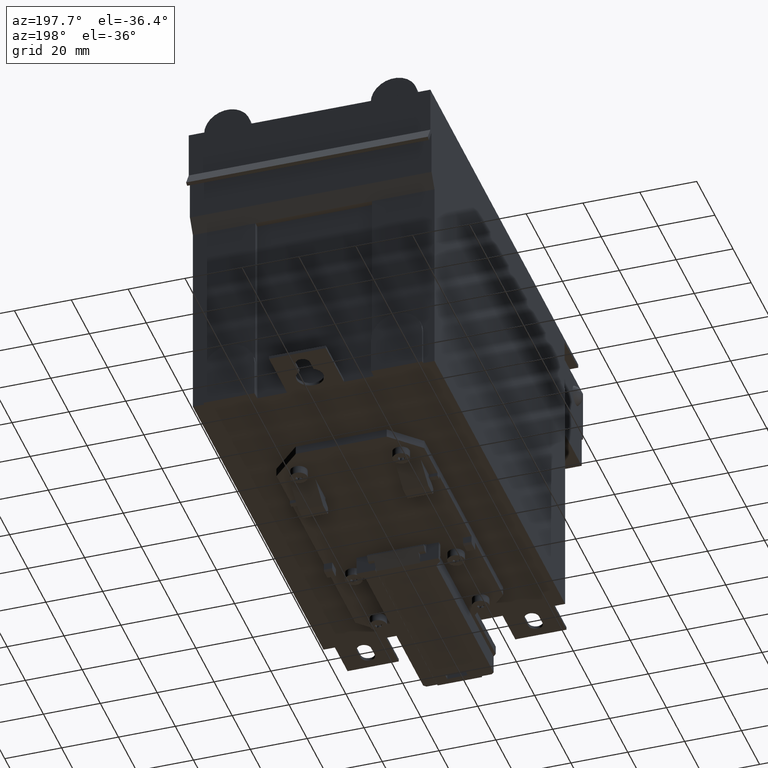
[diagram: clean part render]
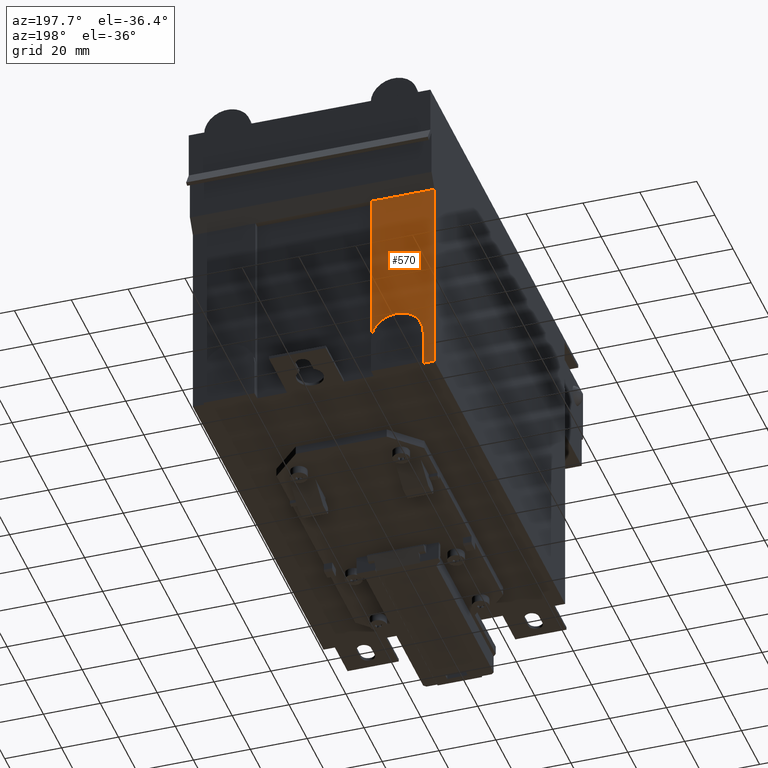
[diagram: same view with one face highlighted and labeled with its STEP entity id]
A machine part, auxiliary view. The second image highlights one B-rep face of the part: STEP entity #570.
In plain terms, the highlighted planar face has unit normal (0, 1, -0).
Its self-contained STEP definition (entity closure, byte-faithful):
#10=CARTESIAN_POINT('',(-19.9498929,-2.78626243737517,-143.));
#20=DIRECTION('',(0.,0.,-1.));
#30=DIRECTION('',(-1.,0.,0.));
#40=AXIS2_PLACEMENT_3D('',#10,#20,#30);
#50=PLANE('',#40);
#60=CARTESIAN_POINT('',(0.,70.4462134950067,-143.));
#70=DIRECTION('',(-1.,0.,0.));
#80=VECTOR('',#70,1.);
#90=LINE('',#60,#80);
#100=CARTESIAN_POINT('',(-20.5,70.4462134950067,-143.));
#110=VERTEX_POINT('',#100);
#120=CARTESIAN_POINT('',(-42.5,70.4462134950067,-143.));
#130=VERTEX_POINT('',#120);
#140=EDGE_CURVE('',#110,#130,#90,.T.);
#150=ORIENTED_EDGE('',*,*,#140,.F.);
#160=CARTESIAN_POINT('',(-42.5,0.,-143.));
#170=DIRECTION('',(0.,1.,0.));
#180=VECTOR('',#170,1.);
#190=LINE('',#160,#180);
#200=CARTESIAN_POINT('',(-42.5,-1.,-143.));
#210=VERTEX_POINT('',#200);
#220=EDGE_CURVE('',#210,#130,#190,.T.);
#230=ORIENTED_EDGE('',*,*,#220,.T.);
#240=CARTESIAN_POINT('',(0.,-1.,-143.));
#250=DIRECTION('',(1.,0.,0.));
#260=VECTOR('',#250,1.);
#270=LINE('',#240,#260);
#280=CARTESIAN_POINT('',(-38.5,-1.,-143.));
#290=VERTEX_POINT('',#280);
#300=EDGE_CURVE('',#210,#290,#270,.T.);
#310=ORIENTED_EDGE('',*,*,#300,.F.);
#320=CARTESIAN_POINT('',(-38.5,0.,-143.));
#330=DIRECTION('',(0.,1.,0.));
#340=VECTOR('',#330,1.);
#350=LINE('',#320,#340);
#360=CARTESIAN_POINT('',(-38.5,12.,-143.));
#370=VERTEX_POINT('',#360);
#380=EDGE_CURVE('',#290,#370,#350,.T.);
#390=ORIENTED_EDGE('',*,*,#380,.F.);
#400=CARTESIAN_POINT('',(-29.5,12.,-143.));
#410=DIRECTION('',(0.,0.,-1.));
#420=DIRECTION('',(-1.,0.,0.));
#430=AXIS2_PLACEMENT_3D('',#400,#410,#420);
#440=CIRCLE('',#430,8.99999999999999);
#450=CARTESIAN_POINT('',(-20.5,12.,-143.));
#460=VERTEX_POINT('',#450);
#470=EDGE_CURVE('',#370,#460,#440,.T.);
#480=ORIENTED_EDGE('',*,*,#470,.F.);
#490=CARTESIAN_POINT('',(-20.5,0.,-143.));
#500=DIRECTION('',(0.,1.,0.));
#510=VECTOR('',#500,1.);
#520=LINE('',#490,#510);
#530=EDGE_CURVE('',#460,#110,#520,.T.);
#540=ORIENTED_EDGE('',*,*,#530,.F.);
#550=EDGE_LOOP('',(#540,#480,#390,#310,#230,#150));
#560=FACE_OUTER_BOUND('',#550,.T.);
#570=ADVANCED_FACE('',(#560),#50,.T.);